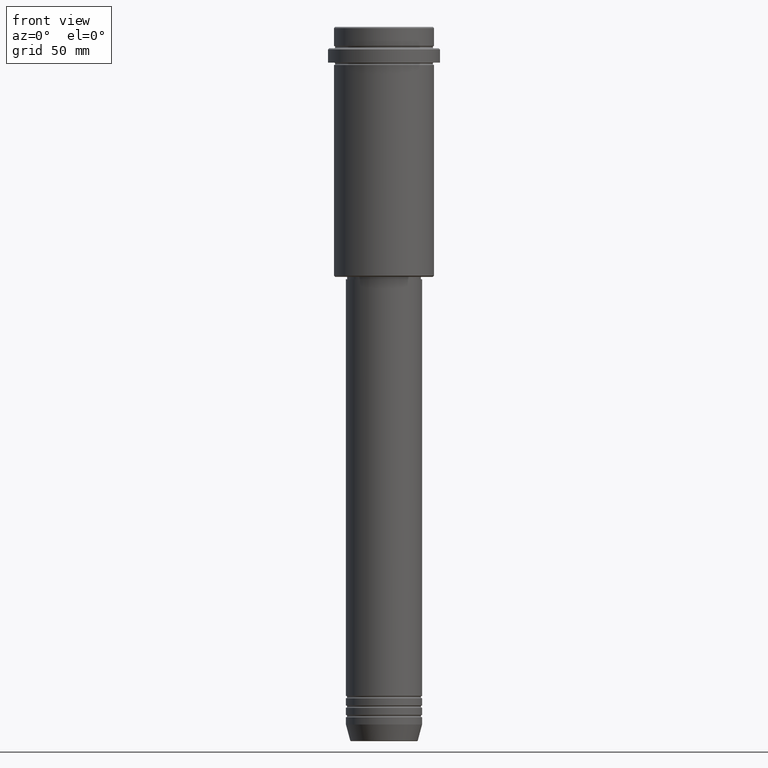
[diagram: clean part render]
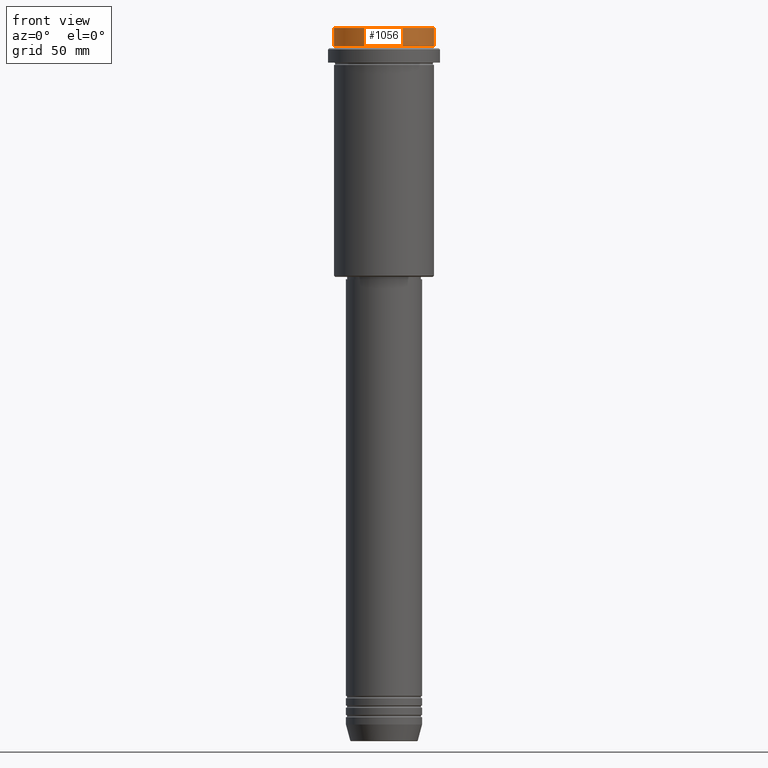
[diagram: same view with one face highlighted and labeled with its STEP entity id]
A machine part, front view. The second image highlights one B-rep face of the part: STEP entity #1056.
In plain terms, the highlighted cylindrical surface (partial cylindrical patch) has radius 21 mm, axis along (-0, -0, 1).
Its self-contained STEP definition (entity closure, byte-faithful):
#4 = EDGE_CURVE ( 'NONE', #707, #794, #1117, .T. ) ;
#22 = ORIENTED_EDGE ( 'NONE', *, *, #4, .T. ) ;
#60 = VECTOR ( 'NONE', #852, 1000.000000000000000 ) ;
#108 = CARTESIAN_POINT ( 'NONE',  ( 20.99999999999999645, 0.000000000000000000, -7.999999999999998224 ) ) ;
#184 = CYLINDRICAL_SURFACE ( 'NONE', #1311, 20.99999999999999645 ) ;
#205 = ORIENTED_EDGE ( 'NONE', *, *, #1251, .F. ) ;
#248 = CARTESIAN_POINT ( 'NONE',  ( -20.99999999999999645, 2.571758278209441267E-15, -7.999999999999998224 ) ) ;
#261 = CIRCLE ( 'NONE', #1053, 20.99999999999999645 ) ;
#267 = FACE_OUTER_BOUND ( 'NONE', #288, .T. ) ;
#268 = DIRECTION ( 'NONE',  ( -0.000000000000000000, -0.000000000000000000, 1.000000000000000000 ) ) ;
#272 = CARTESIAN_POINT ( 'NONE',  ( 20.99999999999999645, 0.000000000000000000, 0.000000000000000000 ) ) ;
#275 = CARTESIAN_POINT ( 'NONE',  ( 0.000000000000000000, 0.000000000000000000, 0.000000000000000000 ) ) ;
#288 = EDGE_LOOP ( 'NONE', ( #205, #1287, #826, #22 ) ) ;
#527 = CARTESIAN_POINT ( 'NONE',  ( -20.99999999999999645, 2.571758278209441267E-15, 0.000000000000000000 ) ) ;
#548 = DIRECTION ( 'NONE',  ( 0.000000000000000000, 0.000000000000000000, -1.000000000000000000 ) ) ;
#597 = CARTESIAN_POINT ( 'NONE',  ( 0.000000000000000000, 0.000000000000000000, -7.999999999999998224 ) ) ;
#624 = EDGE_CURVE ( 'NONE', #770, #707, #1151, .T. ) ;
#627 = CARTESIAN_POINT ( 'NONE',  ( -20.99999999999999645, 2.571758278209441267E-15, -0.5000000000000073275 ) ) ;
#653 = CARTESIAN_POINT ( 'NONE',  ( 0.000000000000000000, 0.000000000000000000, -0.5000000000000073275 ) ) ;
#707 = VERTEX_POINT ( 'NONE', #1085 ) ;
#770 = VERTEX_POINT ( 'NONE', #108 ) ;
#794 = VERTEX_POINT ( 'NONE', #627 ) ;
#826 = ORIENTED_EDGE ( 'NONE', *, *, #624, .T. ) ;
#852 = DIRECTION ( 'NONE',  ( -0.000000000000000000, -0.000000000000000000, 1.000000000000000000 ) ) ;
#857 = AXIS2_PLACEMENT_3D ( 'NONE', #653, #548, #976 ) ;
#862 = VECTOR ( 'NONE', #268, 1000.000000000000000 ) ;
#886 = VERTEX_POINT ( 'NONE', #248 ) ;
#926 = DIRECTION ( 'NONE',  ( 1.000000000000000000, 0.000000000000000000, 0.000000000000000000 ) ) ;
#976 = DIRECTION ( 'NONE',  ( 1.000000000000000000, 0.000000000000000000, 0.000000000000000000 ) ) ;
#1017 = DIRECTION ( 'NONE',  ( -0.000000000000000000, -0.000000000000000000, 1.000000000000000000 ) ) ;
#1040 = DIRECTION ( 'NONE',  ( -0.000000000000000000, -0.000000000000000000, 1.000000000000000000 ) ) ;
#1053 = AXIS2_PLACEMENT_3D ( 'NONE', #597, #1040, #926 ) ;
#1056 = ADVANCED_FACE ( 'NONE', ( #267 ), #184, .T. ) ;
#1067 = LINE ( 'NONE', #527, #60 ) ;
#1085 = CARTESIAN_POINT ( 'NONE',  ( 20.99999999999999645, 0.000000000000000000, -0.5000000000000073275 ) ) ;
#1087 = EDGE_CURVE ( 'NONE', #886, #770, #261, .T. ) ;
#1117 = CIRCLE ( 'NONE', #857, 20.99999999999999645 ) ;
#1150 = DIRECTION ( 'NONE',  ( 1.000000000000000000, 0.000000000000000000, 0.000000000000000000 ) ) ;
#1151 = LINE ( 'NONE', #272, #862 ) ;
#1251 = EDGE_CURVE ( 'NONE', #886, #794, #1067, .T. ) ;
#1287 = ORIENTED_EDGE ( 'NONE', *, *, #1087, .T. ) ;
#1311 = AXIS2_PLACEMENT_3D ( 'NONE', #275, #1017, #1150 ) ;